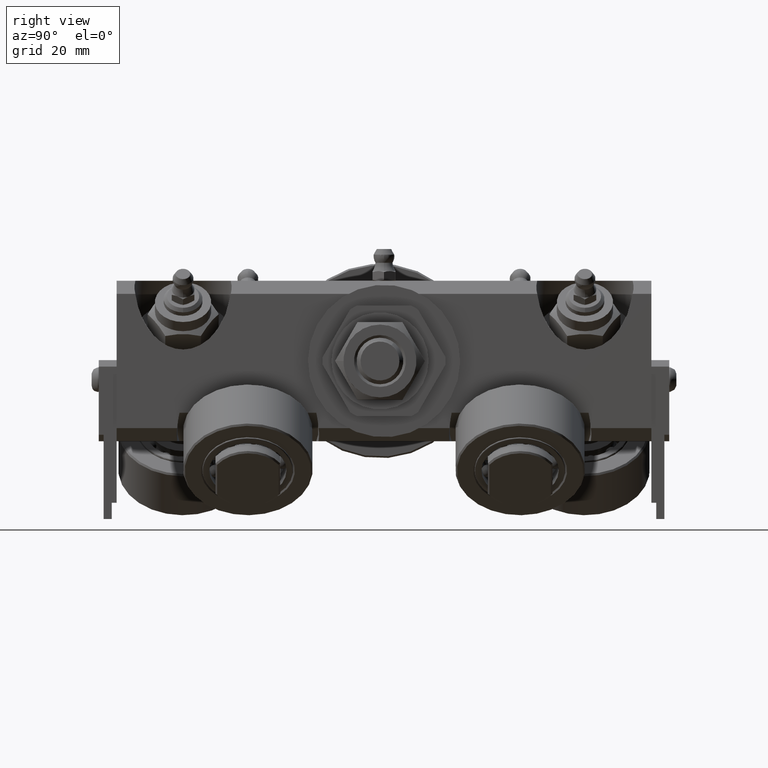
[diagram: clean part render]
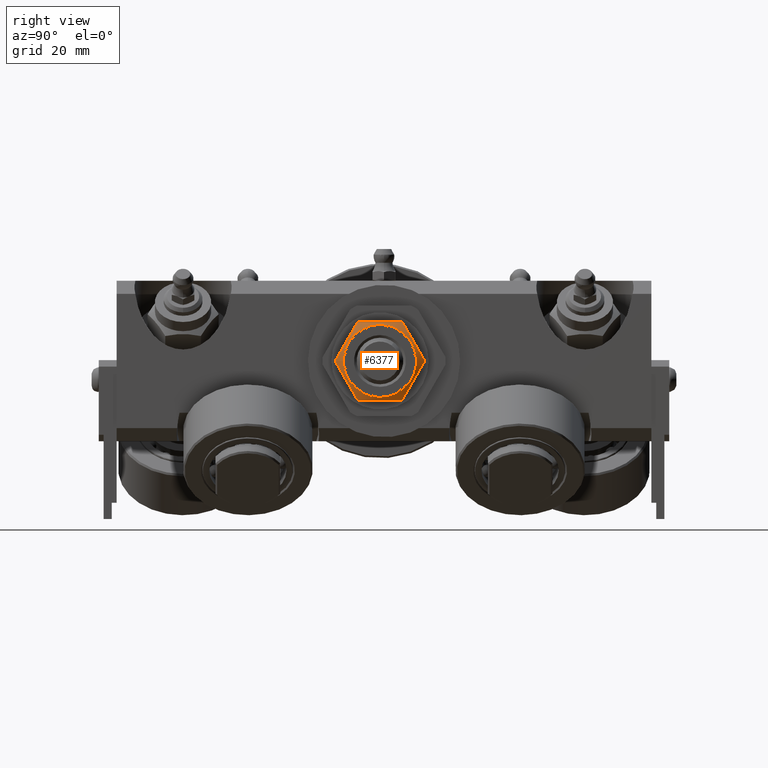
[diagram: same view with one face highlighted and labeled with its STEP entity id]
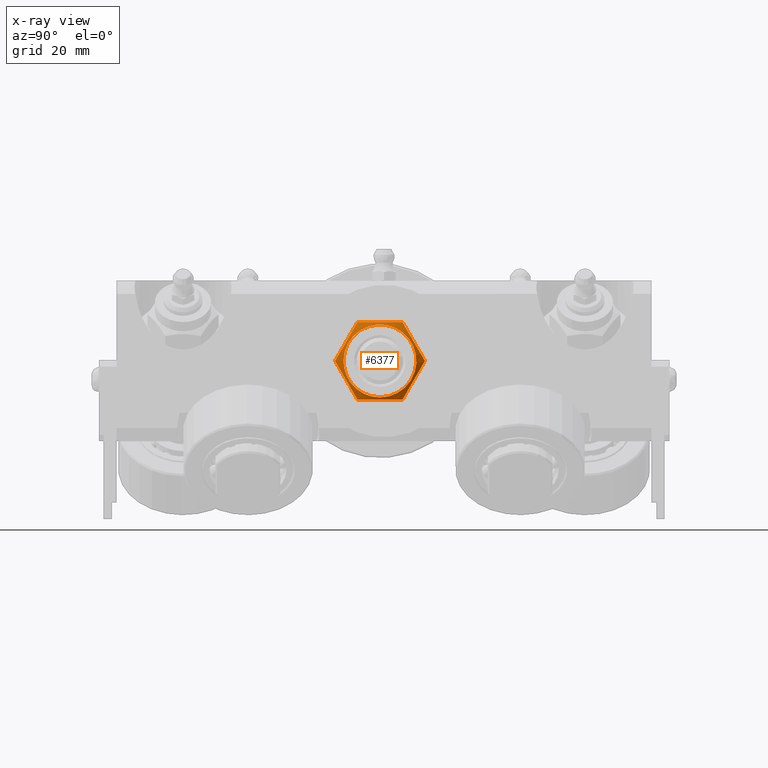
[diagram: x-ray of the same camera — body ghosted, the highlighted face saturated]
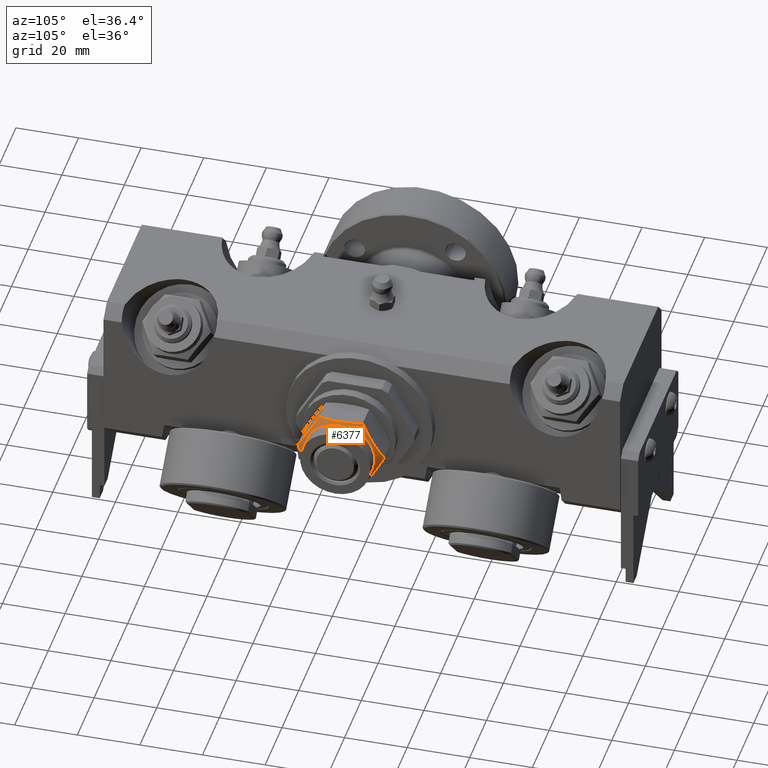
[diagram: same view with one face highlighted and labeled with its STEP entity id]
A machine part, right view. The second image highlights one B-rep face of the part: STEP entity #6377.
The next image is the same camera in x-ray: the body ghosted, the highlighted face saturated — about 0% of this face is hidden behind the body in this view.
A second angle (auxiliary view) of the same face is appended — the face is thin or edge-on in the first view.
In plain terms, the highlighted conical surface has half-angle 60 deg.
Its self-contained STEP definition (entity closure, byte-faithful):
#148=(
BOUNDED_CURVE()
B_SPLINE_CURVE(2,(#12883,#12884,#12885),.UNSPECIFIED.,.F.,.F.)
B_SPLINE_CURVE_WITH_KNOTS((3,3),(0.,1.4021233656935),.UNSPECIFIED.)
CURVE()
GEOMETRIC_REPRESENTATION_ITEM()
RATIONAL_B_SPLINE_CURVE((1.,1.15470053837926,1.))
REPRESENTATION_ITEM('')
);
#149=(
BOUNDED_CURVE()
B_SPLINE_CURVE(2,(#12887,#12888,#12889),.UNSPECIFIED.,.F.,.F.)
B_SPLINE_CURVE_WITH_KNOTS((3,3),(0.,1.4021233656935),.UNSPECIFIED.)
CURVE()
GEOMETRIC_REPRESENTATION_ITEM()
RATIONAL_B_SPLINE_CURVE((1.,1.15470053837925,1.))
REPRESENTATION_ITEM('')
);
#150=(
BOUNDED_CURVE()
B_SPLINE_CURVE(2,(#12891,#12892,#12893),.UNSPECIFIED.,.F.,.F.)
B_SPLINE_CURVE_WITH_KNOTS((3,3),(0.,1.4021233656935),.UNSPECIFIED.)
CURVE()
GEOMETRIC_REPRESENTATION_ITEM()
RATIONAL_B_SPLINE_CURVE((1.,1.15470053837924,1.))
REPRESENTATION_ITEM('')
);
#151=(
BOUNDED_CURVE()
B_SPLINE_CURVE(2,(#12895,#12896,#12897),.UNSPECIFIED.,.F.,.F.)
B_SPLINE_CURVE_WITH_KNOTS((3,3),(0.,1.4021233656935),.UNSPECIFIED.)
CURVE()
GEOMETRIC_REPRESENTATION_ITEM()
RATIONAL_B_SPLINE_CURVE((1.,1.15470053837925,1.))
REPRESENTATION_ITEM('')
);
#152=(
BOUNDED_CURVE()
B_SPLINE_CURVE(2,(#12899,#12900,#12901),.UNSPECIFIED.,.F.,.F.)
B_SPLINE_CURVE_WITH_KNOTS((3,3),(0.,1.4021233656935),.UNSPECIFIED.)
CURVE()
GEOMETRIC_REPRESENTATION_ITEM()
RATIONAL_B_SPLINE_CURVE((1.,1.15470053837925,1.))
REPRESENTATION_ITEM('')
);
#153=(
BOUNDED_CURVE()
B_SPLINE_CURVE(2,(#12902,#12903,#12904),.UNSPECIFIED.,.F.,.F.)
B_SPLINE_CURVE_WITH_KNOTS((3,3),(0.,1.4021233656935),.UNSPECIFIED.)
CURVE()
GEOMETRIC_REPRESENTATION_ITEM()
RATIONAL_B_SPLINE_CURVE((1.,1.15470053837925,1.))
REPRESENTATION_ITEM('')
);
#340=CONICAL_SURFACE('',#7475,12.5532032302755,1.0471975511966);
#900=FACE_OUTER_BOUND('',#1329,.T.);
#1329=EDGE_LOOP('',(#5512,#5513,#5514,#5515,#5516,#5517,#5518,#5519,#5520,
#5521));
#1723=CIRCLE('',#7476,11.25);
#1724=CIRCLE('',#7477,11.25);
#2126=LINE('',#12881,#2497);
#2497=VECTOR('',#9045,12.5532032302755);
#3098=VERTEX_POINT('',#12877);
#3099=VERTEX_POINT('',#12878);
#3100=VERTEX_POINT('',#12880);
#3101=VERTEX_POINT('',#12882);
#3102=VERTEX_POINT('',#12886);
#3103=VERTEX_POINT('',#12890);
#3104=VERTEX_POINT('',#12894);
#3105=VERTEX_POINT('',#12898);
#3930=EDGE_CURVE('',#3098,#3099,#1723,.T.);
#3931=EDGE_CURVE('',#3099,#3100,#2126,.T.);
#3932=EDGE_CURVE('',#3101,#3100,#148,.T.);
#3933=EDGE_CURVE('',#3102,#3101,#149,.T.);
#3934=EDGE_CURVE('',#3103,#3102,#150,.T.);
#3935=EDGE_CURVE('',#3104,#3103,#151,.T.);
#3936=EDGE_CURVE('',#3105,#3104,#152,.T.);
#3937=EDGE_CURVE('',#3100,#3105,#153,.T.);
#3938=EDGE_CURVE('',#3099,#3098,#1724,.T.);
#5512=ORIENTED_EDGE('',*,*,#3930,.T.);
#5513=ORIENTED_EDGE('',*,*,#3931,.T.);
#5514=ORIENTED_EDGE('',*,*,#3932,.F.);
#5515=ORIENTED_EDGE('',*,*,#3933,.F.);
#5516=ORIENTED_EDGE('',*,*,#3934,.F.);
#5517=ORIENTED_EDGE('',*,*,#3935,.F.);
#5518=ORIENTED_EDGE('',*,*,#3936,.F.);
#5519=ORIENTED_EDGE('',*,*,#3937,.F.);
#5520=ORIENTED_EDGE('',*,*,#3931,.F.);
#5521=ORIENTED_EDGE('',*,*,#3938,.T.);
#6377=ADVANCED_FACE('',(#900),#340,.T.);
#7475=AXIS2_PLACEMENT_3D('',#12876,#9041,#9042);
#7476=AXIS2_PLACEMENT_3D('',#12879,#9043,#9044);
#7477=AXIS2_PLACEMENT_3D('',#12905,#9046,#9047);
#9041=DIRECTION('center_axis',(-1.,0.,0.));
#9042=DIRECTION('ref_axis',(8.0141987273291E-17,1.,0.));
#9043=DIRECTION('center_axis',(-1.,0.,0.));
#9044=DIRECTION('ref_axis',(0.,0.,1.));
#9045=DIRECTION('',(-0.5,-0.866025403784439,1.06057523872491E-16));
#9046=DIRECTION('center_axis',(-1.,0.,0.));
#9047=DIRECTION('ref_axis',(0.,0.,1.));
#12876=CARTESIAN_POINT('Origin',(9.74759526419165,0.,0.));
#12877=CARTESIAN_POINT('',(10.5,1.37772764904077E-15,-11.25));
#12878=CARTESIAN_POINT('',(10.5,-11.25,1.37772764904077E-15));
#12879=CARTESIAN_POINT('Origin',(10.5,0.,0.));
#12880=CARTESIAN_POINT('',(8.99519052838329,-13.856406460551,-1.55431223447522E-14));
#12881=CARTESIAN_POINT('',(9.74759526419165,-12.5532032302755,1.53732401550031E-15));
#12882=CARTESIAN_POINT('',(8.99519052838329,-6.92820323027554,-12.));
#12883=CARTESIAN_POINT('Ctrl Pts',(8.99519052838329,-6.92820323027554,-12.));
#12884=CARTESIAN_POINT('Ctrl Pts',(10.9951905283833,-10.3923048454133,-6.));
#12885=CARTESIAN_POINT('Ctrl Pts',(8.99519052838329,-13.856406460551,-1.8382202385563E-14));
#12886=CARTESIAN_POINT('',(8.99519052838329,6.92820323027553,-12.));
#12887=CARTESIAN_POINT('Ctrl Pts',(8.99519052838329,6.92820323027546,-12.));
#12888=CARTESIAN_POINT('Ctrl Pts',(10.9951905283833,-1.72084568816899E-14,
-12.));
#12889=CARTESIAN_POINT('Ctrl Pts',(8.99519052838329,-6.92820323027549,-12.));
#12890=CARTESIAN_POINT('',(8.99519052838329,13.856406460551,0.));
#12891=CARTESIAN_POINT('Ctrl Pts',(8.99519052838329,13.856406460551,2.45096031807507E-15));
#12892=CARTESIAN_POINT('Ctrl Pts',(10.9951905283833,10.3923048454133,-5.99999999999999));
#12893=CARTESIAN_POINT('Ctrl Pts',(8.99519052838329,6.92820323027553,-12.));
#12894=CARTESIAN_POINT('',(8.99519052838329,6.92820323027552,12.));
#12895=CARTESIAN_POINT('Ctrl Pts',(8.99519052838329,6.92820323027551,12.));
#12896=CARTESIAN_POINT('Ctrl Pts',(10.9951905283833,10.3923048454133,6.));
#12897=CARTESIAN_POINT('Ctrl Pts',(8.99519052838329,13.856406460551,-8.57836111326274E-15));
#12898=CARTESIAN_POINT('',(8.99519052838329,-6.92820323027552,12.));
#12899=CARTESIAN_POINT('Ctrl Pts',(8.99519052838329,-6.92820323027552,12.));
#12900=CARTESIAN_POINT('Ctrl Pts',(10.9951905283833,0.,12.));
#12901=CARTESIAN_POINT('Ctrl Pts',(8.99519052838329,6.92820323027552,12.));
#12902=CARTESIAN_POINT('Ctrl Pts',(8.99519052838329,-13.856406460551,-9.80384127230027E-15));
#12903=CARTESIAN_POINT('Ctrl Pts',(10.9951905283833,-10.3923048454133,5.99999999999999));
#12904=CARTESIAN_POINT('Ctrl Pts',(8.99519052838329,-6.92820323027552,12.));
#12905=CARTESIAN_POINT('Origin',(10.5,0.,0.));